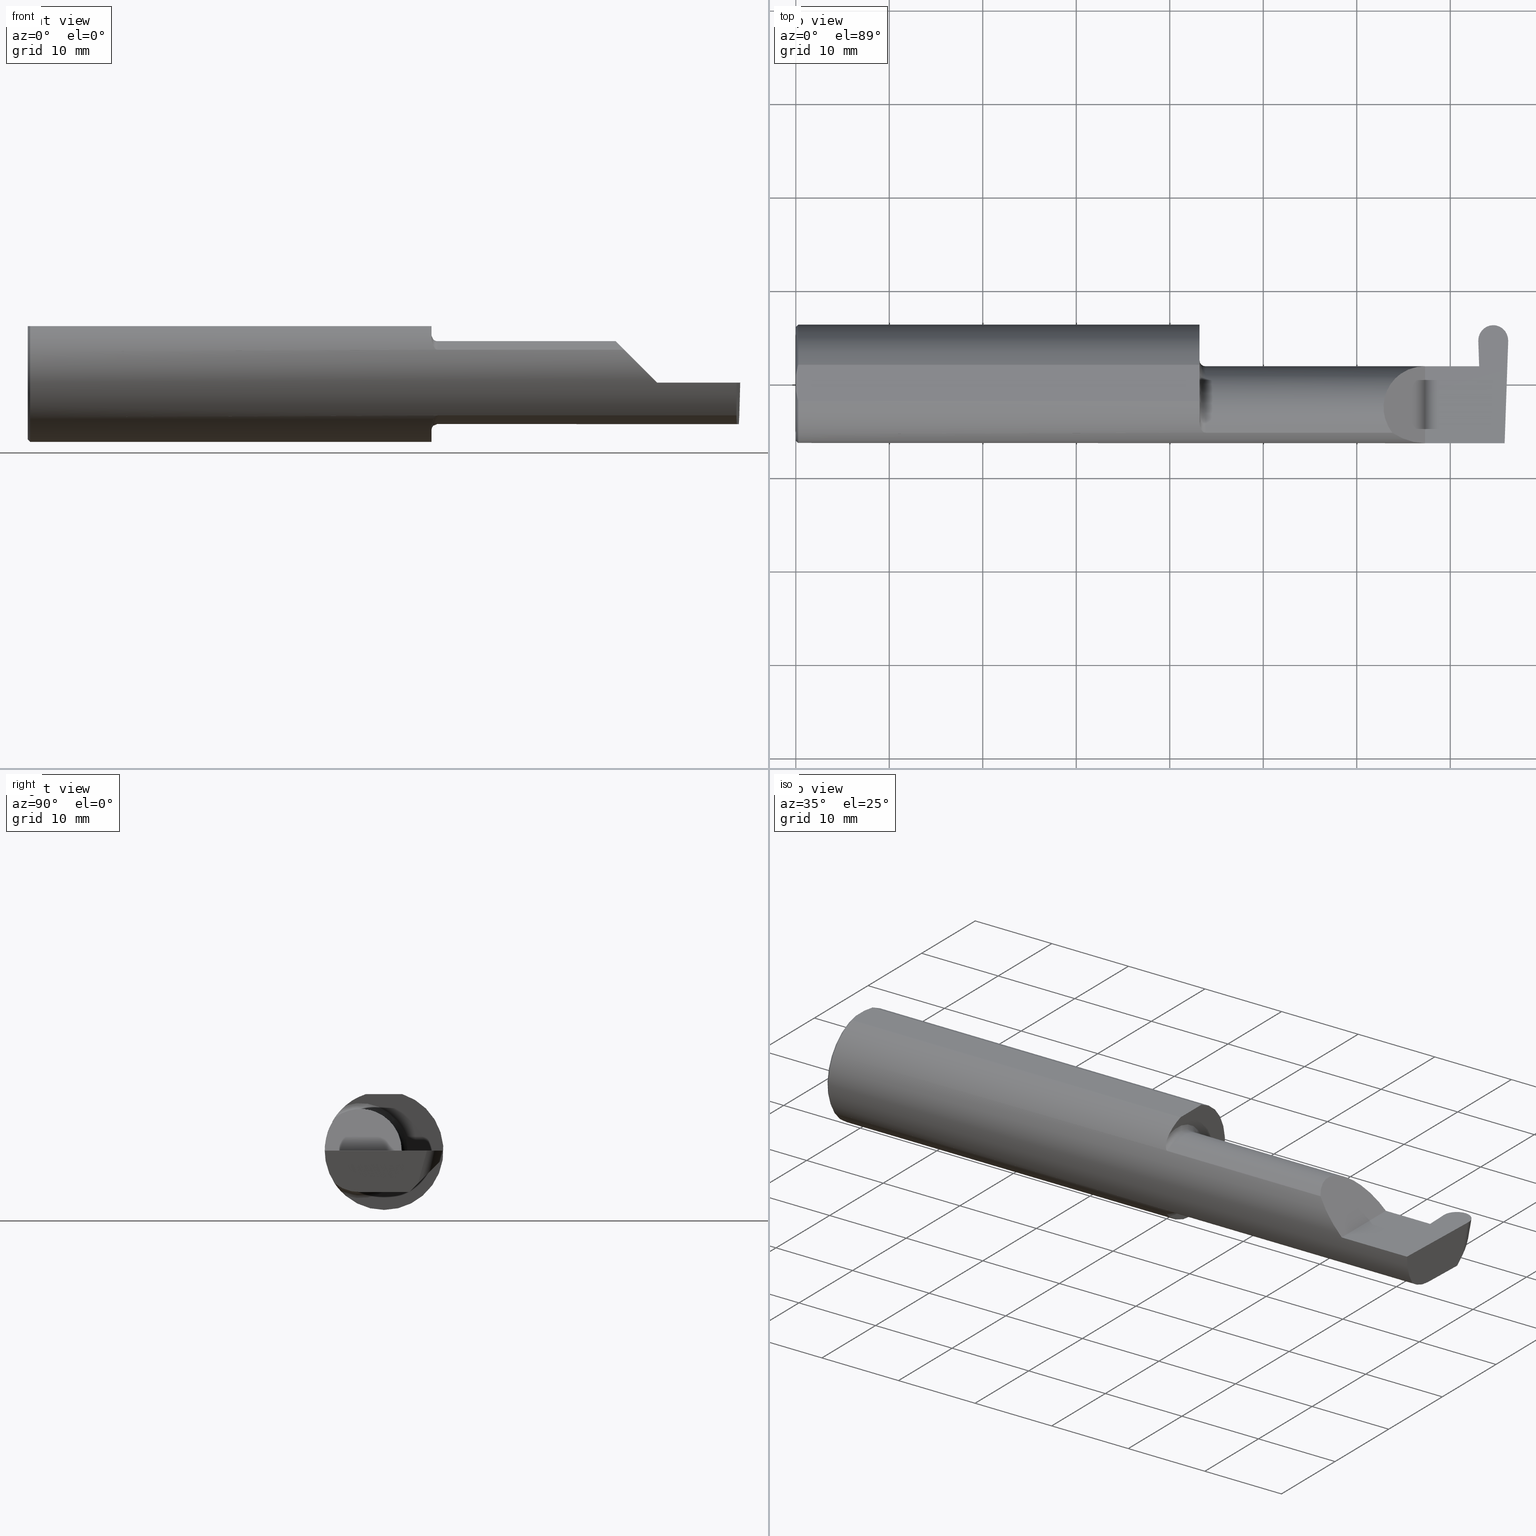
[diagram: canonical four-view strip — front | top / right | iso, engineering-drawing reading convention]
A machine part, canonical four-view strip (front | top / right | iso — engineering-drawing reading convention). The complete STEP part file that produces these views, byte-faithful:
ISO-10303-21;
HEADER;
FILE_DESCRIPTION (( 'STEP AP203' ),
    '1' );
FILE_NAME ('222479-GFR125-20.STEP',
    '2024-06-28T19:17:52',
    ( '' ),
    ( '' ),
    'SwSTEP 2.0',
    'SolidWorks 2024',
    '' );
FILE_SCHEMA (( 'CONFIG_CONTROL_DESIGN' ));
ENDSEC;

DATA;
#1 = CARTESIAN_POINT ( 'NONE',  ( 1.700000000000000178, 0.000000000000000000, 0.000000000000000000 ) ) ;
#2 = EDGE_CURVE ( 'NONE', #109, #354, #558, .T. ) ;
#3 = VERTEX_POINT ( 'NONE', #186 ) ;
#4 = DIRECTION ( 'NONE',  ( 1.000000000000000000, 0.000000000000000000, 0.000000000000000000 ) ) ;
#5 = LINE ( 'NONE', #333, #33 ) ;
#6 = ORIENTED_EDGE ( 'NONE', *, *, #317, .F. ) ;
#7 = CALENDAR_DATE ( 2024, 28, 6 ) ;
#8 = CARTESIAN_POINT ( 'NONE',  ( 2.866439859938323398, 0.07404339472834126079, -0.006107411922953031799 ) ) ;
#9 = ORIENTED_EDGE ( 'NONE', *, *, #198, .T. ) ;
#10 = APPROVAL_STATUS ( 'not_yet_approved' ) ;
#11 = CARTESIAN_POINT ( 'NONE',  ( 2.987033238708274752, -0.1008499999999999674, -0.1750000000000000722 ) ) ;
#12 = ORIENTED_EDGE ( 'NONE', *, *, #689, .F. ) ;
#13 = APPROVAL_PERSON_ORGANIZATION ( #83, #437, #518 ) ;
#14 = APPROVAL ( #10, 'UNSPECIFIED' ) ;
#15 = CC_DESIGN_PERSON_AND_ORGANIZATION_ASSIGNMENT ( #620, #24, ( #131 ) ) ;
#16 = LINE ( 'NONE', #559, #353 ) ;
#17 = APPROVAL ( #668, 'UNSPECIFIED' ) ;
#18 = DIRECTION ( 'NONE',  ( 0.000000000000000000, -1.000000000000000000, 0.000000000000000000 ) ) ;
#19 = AXIS2_PLACEMENT_3D ( 'NONE', #436, #652, #166 ) ;
#20 = AXIS2_PLACEMENT_3D ( 'NONE', #431, #107, #115 ) ;
#21 = CARTESIAN_POINT ( 'NONE',  ( 2.877583938758737858, 0.1431283489340402504, -0.1376959882141291225 ) ) ;
#22 = ORIENTED_EDGE ( 'NONE', *, *, #27, .F. ) ;
#23 = ORIENTED_EDGE ( 'NONE', *, *, #97, .T. ) ;
#24 = PERSON_AND_ORGANIZATION_ROLE ( 'creator' ) ;
#25 = PLANE ( 'NONE',  #212 ) ;
#26 = FACE_OUTER_BOUND ( 'NONE', #136, .T. ) ;
#27 = EDGE_CURVE ( 'NONE', #608, #442, #402, .T. ) ;
#28 = VERTEX_POINT ( 'NONE', #130 ) ;
#29 = LOCAL_TIME ( 12, 17, 51.00000000000000000, #287 ) ;
#30 = CARTESIAN_POINT ( 'NONE',  ( 0.001983148254845701515, -0.04629825796642599717, 0.2378499999999998671 ) ) ;
#31 =( BOUNDED_CURVE ( )  B_SPLINE_CURVE ( 3, ( #663, #452, #126, #610 ),
 .UNSPECIFIED., .F., .F. ) 
 B_SPLINE_CURVE_WITH_KNOTS ( ( 4, 4 ),
 ( 4.712388980384687898, 4.724678304898035641 ),
 .UNSPECIFIED. ) 
 CURVE ( )  GEOMETRIC_REPRESENTATION_ITEM ( )  RATIONAL_B_SPLINE_CURVE ( ( 1.000000000000000000, 0.9999874144148499511, 0.9999874144148499511, 1.000000000000000000 ) ) 
 REPRESENTATION_ITEM ( '' )  );
#32 = ORIENTED_EDGE ( 'NONE', *, *, #119, .T. ) ;
#33 = VECTOR ( 'NONE', #390, 39.37007874015748143 ) ;
#34 = PRODUCT_DEFINITION_SHAPE ( 'NONE', 'NONE',  #146 ) ;
#35 = PRODUCT_RELATED_PRODUCT_CATEGORY ( 'detail', '', ( #46 ) ) ;
#36 = CARTESIAN_POINT ( 'NONE',  ( 0.009999999999999856226, 0.07650098038587520299, 0.2378499999999998671 ) ) ;
#37 = CARTESIAN_POINT ( 'NONE',  ( 1.700000000000000178, -0.1008500000000000785, 0.000000000000000000 ) ) ;
#38 = EDGE_CURVE ( 'NONE', #240, #300, #349, .T. ) ;
#39 = LINE ( 'NONE', #639, #667 ) ;
#40 = CARTESIAN_POINT ( 'NONE',  ( 1.700000000000000178, -0.1665641037263009827, 0.1863429692936362514 ) ) ;
#41 = CARTESIAN_POINT ( 'NONE',  ( 2.880773714454434753, -0.001152430219572253686, -0.1750000000000000722 ) ) ;
#42 = CARTESIAN_POINT ( 'NONE',  ( 0.000000000000000000, 0.07650098038587520299, 0.2378499999999998671 ) ) ;
#43 = ORIENTED_EDGE ( 'NONE', *, *, #355, .F. ) ;
#44 = VECTOR ( 'NONE', #144, 39.37007874015748143 ) ;
#45 = CARTESIAN_POINT ( 'NONE',  ( 2.877587758332053269, 0.07414999999999977165, 0.000000000000000000 ) ) ;
#46 = PRODUCT ( '222479-GFR125-20', '222479-GFR125-20', '', ( #238 ) ) ;
#47 = CARTESIAN_POINT ( 'NONE',  ( 1.700000000000000178, -0.1616050818046603776, 0.1905487340154980724 ) ) ;
#48 = ORIENTED_EDGE ( 'NONE', *, *, #213, .T. ) ;
#49 = DIRECTION ( 'NONE',  ( 0.000000000000000000, 0.9659258262890680902, -0.2588190451025209615 ) ) ;
#50 = LINE ( 'NONE', #42, #268 ) ;
#51 = LINE ( 'NONE', #378, #547 ) ;
#52 = CARTESIAN_POINT ( 'NONE',  ( 1.717611663768900954, -0.2061921161193829843, -0.1411075319999378908 ) ) ;
#53 = SECURITY_CLASSIFICATION ( '', '', #337 ) ;
#54 = EDGE_LOOP ( 'NONE', ( #539, #237, #32, #247, #508, #60 ) ) ;
#55 = ADVANCED_FACE ( 'NONE', ( #26 ), #477, .F. ) ;
#56 = CARTESIAN_POINT ( 'NONE',  ( -0.002039370078740339320, 0.1058243371481696476, -0.1750000000000001277 ) ) ;
#57 = AXIS2_PLACEMENT_3D ( 'NONE', #1, #323, #503 ) ;
#58 = AXIS2_PLACEMENT_3D ( 'NONE', #706, #4, #702 ) ;
#59 = DIRECTION ( 'NONE',  ( 1.000000000000000000, 0.000000000000000000, -0.000000000000000000 ) ) ;
#60 = ORIENTED_EDGE ( 'NONE', *, *, #457, .F. ) ;
#61 = ADVANCED_FACE ( 'NONE', ( #373 ), #263, .T. ) ;
#62 = DIRECTION ( 'NONE',  ( 1.000000000000000000, 0.000000000000000000, 0.000000000000000000 ) ) ;
#63 = DIRECTION ( 'NONE',  ( 0.01806679408117574034, 0.000000000000000000, -0.9998367821557817559 ) ) ;
#64 = VERTEX_POINT ( 'NONE', #308 ) ;
#65 = DIRECTION ( 'NONE',  ( -0.02590004391968258809, -0.2587322210431824976, -0.9656017944882975268 ) ) ;
#66 = CARTESIAN_POINT ( 'NONE',  ( 2.650000000000000355, -0.2498499999999999610, 4.286263797015729199E-17 ) ) ;
#67 = ORIENTED_EDGE ( 'NONE', *, *, #457, .T. ) ;
#68 = CC_DESIGN_APPROVAL ( #17, ( #53 ) ) ;
#69 = COORDINATED_UNIVERSAL_TIME_OFFSET ( 8, 0, .BEHIND. ) ;
#70 = CARTESIAN_POINT ( 'NONE',  ( 2.996204691241262985, 0.1431283489340401394, -0.1376959882141292058 ) ) ;
#71 = ORIENTED_EDGE ( 'NONE', *, *, #255, .F. ) ;
#72 = DIRECTION ( 'NONE',  ( 0.000000000000000000, 0.000000000000000000, 1.000000000000000000 ) ) ;
#73 = CARTESIAN_POINT ( 'NONE',  ( 2.872525856337140748, 0.2191039076196377999, 1.588360126375408623E-17 ) ) ;
#74 = ORIENTED_EDGE ( 'NONE', *, *, #195, .T. ) ;
#75 = LINE ( 'NONE', #249, #44 ) ;
#76 = VERTEX_POINT ( 'NONE', #632 ) ;
#77 = DATE_AND_TIME ( #564, #29 ) ;
#78 =( BOUNDED_CURVE ( )  B_SPLINE_CURVE ( 3, ( #456, #669, #695, #153 ),
 .UNSPECIFIED., .F., .T. ) 
 B_SPLINE_CURVE_WITH_KNOTS ( ( 4, 4 ),
 ( 4.712388980384689674, 5.298966915116347209 ),
 .UNSPECIFIED. ) 
 CURVE ( )  GEOMETRIC_REPRESENTATION_ITEM ( )  RATIONAL_B_SPLINE_CURVE ( ( 1.000000000000000000, 0.9715321379117538569, 0.9715321379117538569, 1.000000000000000000 ) ) 
 REPRESENTATION_ITEM ( '' )  );
#79 = FACE_OUTER_BOUND ( 'NONE', #626, .T. ) ;
#80 = DIRECTION ( 'NONE',  ( 1.000000000000000000, 0.000000000000000000, 0.000000000000000000 ) ) ;
#81 = AXIS2_PLACEMENT_3D ( 'NONE', #37, #538, #94 ) ;
#82 = VECTOR ( 'NONE', #104, 39.37007874015748143 ) ;
#83 = PERSON_AND_ORGANIZATION ( #313, #586 ) ;
#84 = EDGE_CURVE ( 'NONE', #666, #117, #96, .T. ) ;
#85 = LINE ( 'NONE', #188, #258 ) ;
#86 = DIRECTION ( 'NONE',  ( 0.7071067811865486830, 0.000000000000000000, -0.7071067811865462405 ) ) ;
#87 = DIRECTION ( 'NONE',  ( 0.000000000000000000, -1.000000000000000000, 0.000000000000000000 ) ) ;
#88 = ORIENTED_EDGE ( 'NONE', *, *, #198, .F. ) ;
#89 = VERTEX_POINT ( 'NONE', #91 ) ;
#90 = CARTESIAN_POINT ( 'NONE',  ( 2.983929579294953616, -0.2080850024789288877, -0.1382955322609668858 ) ) ;
#91 = CARTESIAN_POINT ( 'NONE',  ( 1.700000000000000178, 0.07650098038587520299, 0.2378499999999998671 ) ) ;
#92 = EDGE_CURVE ( 'NONE', #127, #565, #147, .T. ) ;
#93 = CARTESIAN_POINT ( 'NONE',  ( 2.866546465209982131, 0.07414999999999977165, 0.000000000000000000 ) ) ;
#94 = DIRECTION ( 'NONE',  ( 0.000000000000000000, -1.000000000000000000, 0.000000000000000000 ) ) ;
#95 = DIRECTION ( 'NONE',  ( -0.03489949670249371111, 0.9993908270190959842, 0.000000000000000000 ) ) ;
#96 = LINE ( 'NONE', #642, #182 ) ;
#97 = EDGE_CURVE ( 'NONE', #117, #650, #492, .T. ) ;
#98 = CARTESIAN_POINT ( 'NONE',  ( 2.880805159919762826, -0.1008500000000000368, -0.1750000000000000444 ) ) ;
#99 = DIRECTION ( 'NONE',  ( -0.0003154085283454420899, 0.9999999502587288980, -1.223178646569383192E-16 ) ) ;
#100 = ADVANCED_FACE ( 'NONE', ( #311 ), #578, .T. ) ;
#101 = CARTESIAN_POINT ( 'NONE',  ( 1.701849548162865045, -0.1805300287242672386, 0.1728462070311780896 ) ) ;
#102 = ORIENTED_EDGE ( 'NONE', *, *, #510, .F. ) ;
#103 =( BOUNDED_CURVE ( )  B_SPLINE_CURVE ( 3, ( #98, #41, #361, #422 ),
 .UNSPECIFIED., .F., .F. ) 
 B_SPLINE_CURVE_WITH_KNOTS ( ( 4, 4 ),
 ( 3.159045946109733105, 4.694935687864651541 ),
 .UNSPECIFIED. ) 
 CURVE ( )  GEOMETRIC_REPRESENTATION_ITEM ( )  RATIONAL_B_SPLINE_CURVE ( ( 1.000000000000000000, 0.8128932002257887035, 0.8128932002257887035, 1.000000000000000000 ) ) 
 REPRESENTATION_ITEM ( '' )  );
#104 = DIRECTION ( 'NONE',  ( -5.818441080112232858E-17, 1.000000000000000000, 0.000000000000000000 ) ) ;
#105 = DIRECTION ( 'NONE',  ( 1.000000000000000000, 5.818441080112232858E-17, 0.000000000000000000 ) ) ;
#106 = ORIENTED_EDGE ( 'NONE', *, *, #596, .F. ) ;
#107 = DIRECTION ( 'NONE',  ( 0.02590004391968223074, -0.2587322210431824976, -0.9656017944882975268 ) ) ;
#108 = DIRECTION ( 'NONE',  ( 0.000000000000000000, -0.7071067811865435759, -0.7071067811865514585 ) ) ;
#109 = VERTEX_POINT ( 'NONE', #47 ) ;
#110 = ADVANCED_FACE ( 'NONE', ( #480 ), #700, .F. ) ;
#111 = CARTESIAN_POINT ( 'NONE',  ( 2.935382123675520205, 0.1665992816037146218, -0.05720606541626471753 ) ) ;
#112 = AXIS2_PLACEMENT_3D ( 'NONE', #328, #277, #262 ) ;
#113 = CARTESIAN_POINT ( 'NONE',  ( 0.009999999999999856226, -0.07650098038587520299, 0.2378499999999998671 ) ) ;
#114 = ORIENTED_EDGE ( 'NONE', *, *, #213, .F. ) ;
#115 = DIRECTION ( 'NONE',  ( 0.000000000000000000, 0.9659258262890680902, -0.2588190451025209615 ) ) ;
#116 = FACE_OUTER_BOUND ( 'NONE', #438, .T. ) ;
#117 = VERTEX_POINT ( 'NONE', #630 ) ;
#118 = COORDINATED_UNIVERSAL_TIME_OFFSET ( 8, 0, .BEHIND. ) ;
#119 = EDGE_CURVE ( 'NONE', #89, #565, #50, .T. ) ;
#120 = DIRECTION ( 'NONE',  ( -0.03489949670249371111, 0.9993908270190959842, -1.222058880457094394E-16 ) ) ;
#121 = ORIENTED_EDGE ( 'NONE', *, *, #173, .F. ) ;
#122 = APPROVAL_ROLE ( '' ) ;
#123 = DIRECTION ( 'NONE',  ( -1.000000000000000000, -5.818441080112232858E-17, -0.000000000000000000 ) ) ;
#124 = ORIENTED_EDGE ( 'NONE', *, *, #675, .T. ) ;
#125 = CALENDAR_DATE ( 2024, 28, 6 ) ;
#126 = CARTESIAN_POINT ( 'NONE',  ( 2.936894315000000866, 0.2373994449183843558, -0.03638343994947537685 ) ) ;
#127 = VERTEX_POINT ( 'NONE', #256 ) ;
#128 = EDGE_CURVE ( 'NONE', #109, #666, #444, .T. ) ;
#129 = CARTESIAN_POINT ( 'NONE',  ( 2.874814236522603483, 0.1959989092472254335, -0.08482542790094331486 ) ) ;
#130 = CARTESIAN_POINT ( 'NONE',  ( 2.999898068948996244, 0.1800238777770215015, 0.000000000000000000 ) ) ;
#131 = PRODUCT_DEFINITION_FORMATION_WITH_SPECIFIED_SOURCE ( 'ANY', '', #46, .NOT_KNOWN. ) ;
#132 = PERSON_AND_ORGANIZATION ( #313, #586 ) ;
#133 = CARTESIAN_POINT ( 'NONE',  ( 1.725000000000000089, -0.1008500000000001062, 0.000000000000000000 ) ) ;
#134 = ORIENTED_EDGE ( 'NONE', *, *, #579, .F. ) ;
#135 = CIRCLE ( 'NONE', #57, 0.2498499999999999888 ) ;
#136 = EDGE_LOOP ( 'NONE', ( #164, #189, #611 ) ) ;
#137 = CC_DESIGN_DATE_AND_TIME_ASSIGNMENT ( #77, #408, ( #53 ) ) ;
#138 = DIRECTION ( 'NONE',  ( -0.9992386149554828290, 0.03489418134010775774, 0.01745240643728358798 ) ) ;
#139 = ORIENTED_EDGE ( 'NONE', *, *, #371, .T. ) ;
#140 = ORIENTED_EDGE ( 'NONE', *, *, #195, .F. ) ;
#141 = LINE ( 'NONE', #529, #681 ) ;
#142 = CARTESIAN_POINT ( 'NONE',  ( 2.511704467739032332, -0.2080850024789289432, 0.1382955322609668858 ) ) ;
#143 = AXIS2_PLACEMENT_3D ( 'NONE', #543, #495, #699 ) ;
#144 = DIRECTION ( 'NONE',  ( -0.000000000000000000, 1.000000000000000000, -0.000000000000000000 ) ) ;
#145 = CARTESIAN_POINT ( 'NONE',  ( 0.002005502345409059580, 0.04647171987093979412, 0.2378499999999998671 ) ) ;
#146 = PRODUCT_DEFINITION ( 'UNKNOWN', '', #131, #320 ) ;
#147 = B_SPLINE_CURVE_WITH_KNOTS ( 'NONE', 3,
 ( #421, #145, #474, #470 ),
 .UNSPECIFIED., .F., .F.,
 ( 4, 4 ),
 ( 0.01593449416844770414, 0.01712021724825603733 ),
 .UNSPECIFIED. ) ;
#148 = VECTOR ( 'NONE', #218, 39.37007874015748143 ) ;
#149 = VECTOR ( 'NONE', #475, 39.37007874015748143 ) ;
#150 = APPLICATION_CONTEXT ( 'configuration controlled 3d designs of mechanical parts and assemblies' ) ;
#151 = DIRECTION ( 'NONE',  ( 1.000000000000000000, 5.818441080112232858E-17, 0.000000000000000000 ) ) ;
#152 = EDGE_CURVE ( 'NONE', #28, #64, #399, .T. ) ;
#153 = CARTESIAN_POINT ( 'NONE',  ( 2.511704467739032332, -0.2080850024789289432, 0.1382955322609668858 ) ) ;
#154 = DIRECTION ( 'NONE',  ( -1.000000000000000000, -0.000000000000000000, -0.000000000000000000 ) ) ;
#155 = ORIENTED_EDGE ( 'NONE', *, *, #448, .T. ) ;
#156 = LINE ( 'NONE', #641, #293 ) ;
#157 = DIRECTION ( 'NONE',  ( 0.000000000000000000, -1.000000000000000000, 1.223176342469858371E-16 ) ) ;
#158 = ORIENTED_EDGE ( 'NONE', *, *, #596, .T. ) ;
#159 = AXIS2_PLACEMENT_3D ( 'NONE', #464, #449, #401 ) ;
#160 = CARTESIAN_POINT ( 'NONE',  ( 1.700000000000000178, -0.07650098038587523075, 0.2378499999999998671 ) ) ;
#161 = CYLINDRICAL_SURFACE ( 'NONE', #236, 0.06300000000000001432 ) ;
#162 = CARTESIAN_POINT ( 'NONE',  ( 1.699999999999999734, -0.1716188362992553673, -0.1820560320165480472 ) ) ;
#163 = EDGE_CURVE ( 'NONE', #3, #257, #446, .T. ) ;
#164 = ORIENTED_EDGE ( 'NONE', *, *, #505, .T. ) ;
#165 = CARTESIAN_POINT ( 'NONE',  ( 0.000000000000000000, 0.000000000000000000, 0.000000000000000000 ) ) ;
#166 = DIRECTION ( 'NONE',  ( 0.000000000000000000, 0.000000000000000000, -1.000000000000000000 ) ) ;
#167 = EDGE_LOOP ( 'NONE', ( #211, #391, #340, #546 ) ) ;
#168 = DIRECTION ( 'NONE',  ( -0.7071067811865511255, 0.000000000000000000, 0.7071067811865439090 ) ) ;
#169 = VECTOR ( 'NONE', #493, 39.37007874015748854 ) ;
#170 = CIRCLE ( 'NONE', #58, 0.2498499999999999888 ) ;
#171 = CARTESIAN_POINT ( 'NONE',  ( 1.714302603425052807, -0.2041009206016212441, -0.1441313430770040649 ) ) ;
#172 = ORIENTED_EDGE ( 'NONE', *, *, #602, .T. ) ;
#173 = EDGE_CURVE ( 'NONE', #605, #494, #581, .T. ) ;
#174 = DIRECTION ( 'NONE',  ( 1.000000000000000000, 0.000000000000000000, 0.000000000000000000 ) ) ;
#175 = DIRECTION ( 'NONE',  ( 0.000000000000000000, -0.7071067811865514585, 0.7071067811865435759 ) ) ;
#176 = ORIENTED_EDGE ( 'NONE', *, *, #552, .F. ) ;
#177 = APPLICATION_PROTOCOL_DEFINITION ( 'international standard', 'config_control_design', 1994, #685 ) ;
#178 = DIRECTION ( 'NONE',  ( 5.818441080112232858E-17, -1.000000000000000000, 0.000000000000000000 ) ) ;
#179 = ORIENTED_EDGE ( 'NONE', *, *, #556, .T. ) ;
#180 =( GEOMETRIC_REPRESENTATION_CONTEXT ( 3 ) GLOBAL_UNCERTAINTY_ASSIGNED_CONTEXT ( ( #545 ) ) GLOBAL_UNIT_ASSIGNED_CONTEXT ( ( #590, #514, #561 ) ) REPRESENTATION_CONTEXT ( 'NONE', 'WORKASPACE' ) );
#181 = CARTESIAN_POINT ( 'NONE',  ( 2.880750926882964524, 0.07109536363756167876, -0.1750000000000000722 ) ) ;
#182 = VECTOR ( 'NONE', #530, 39.37007874015748143 ) ;
#183 = EDGE_CURVE ( 'NONE', #257, #28, #649, .T. ) ;
#184 = ORIENTED_EDGE ( 'NONE', *, *, #84, .F. ) ;
#185 = FACE_OUTER_BOUND ( 'NONE', #522, .T. ) ;
#186 = CARTESIAN_POINT ( 'NONE',  ( 2.936894315000000866, 0.2348176093011050958, -0.04600672784706324320 ) ) ;
#187 = APPROVAL_STATUS ( 'not_yet_approved' ) ;
#188 = CARTESIAN_POINT ( 'NONE',  ( 2.934463560741512822, 0.2668412317563639835, 0.07348867737836418945 ) ) ;
#189 = ORIENTED_EDGE ( 'NONE', *, *, #351, .T. ) ;
#190 = VERTEX_POINT ( 'NONE', #66 ) ;
#191 = APPLICATION_PROTOCOL_DEFINITION ( 'international standard', 'config_control_design', 1994, #150 ) ;
#192 = DIRECTION ( 'NONE',  ( -1.000000000000000000, -5.818441080112232858E-17, -0.000000000000000000 ) ) ;
#193 = ORIENTED_EDGE ( 'NONE', *, *, #675, .F. ) ;
#194 = AXIS2_PLACEMENT_3D ( 'NONE', #204, #528, #157 ) ;
#195 = EDGE_CURVE ( 'NONE', #650, #468, #379, .T. ) ;
#196 = CARTESIAN_POINT ( 'NONE',  ( 0.000000000000000000, -0.03090954545120560767, 0.2378499999999998671 ) ) ;
#197 = ORIENTED_EDGE ( 'NONE', *, *, #406, .T. ) ;
#198 = EDGE_CURVE ( 'NONE', #318, #653, #5, .T. ) ;
#199 = DIRECTION ( 'NONE',  ( 0.000000000000000000, -0.2588190451025209615, -0.9659258262890682012 ) ) ;
#200 = DIRECTION ( 'NONE',  ( 0.9992386149554828290, 0.03489418134010641159, 0.01745240643728358798 ) ) ;
#201 = CARTESIAN_POINT ( 'NONE',  ( 1.702968662030529323, -0.1849684355203377317, 0.1680843977756269203 ) ) ;
#202 = CIRCLE ( 'NONE', #577, 0.2498499999999999888 ) ;
#203 = CARTESIAN_POINT ( 'NONE',  ( 0.009999999999999856226, -0.07650098038587520299, 0.2378499999999998671 ) ) ;
#204 = CARTESIAN_POINT ( 'NONE',  ( 3.402190948718818664, -0.1008499999999999674, -0.1750000000000000722 ) ) ;
#205 = ADVANCED_FACE ( 'NONE', ( #661 ), #595, .F. ) ;
#206 = CARTESIAN_POINT ( 'NONE',  ( 2.984886542352623628, -0.2498499999999999888, 0.000000000000000000 ) ) ;
#207 = CARTESIAN_POINT ( 'NONE',  ( 2.974284482021860576, 0.2341676052385947282, -0.04665673190957361077 ) ) ;
#208 = ORIENTED_EDGE ( 'NONE', *, *, #592, .T. ) ;
#209 = CARTESIAN_POINT ( 'NONE',  ( 2.650000000000000355, -0.2500000000000000555, 4.286263797015729199E-17 ) ) ;
#210 = CARTESIAN_POINT ( 'NONE',  ( 2.996204691241262985, 0.1431283489340401394, -0.1376959882141292058 ) ) ;
#211 = ORIENTED_EDGE ( 'NONE', *, *, #128, .T. ) ;
#212 = AXIS2_PLACEMENT_3D ( 'NONE', #614, #569, #291 ) ;
#213 = EDGE_CURVE ( 'NONE', #354, #89, #135, .T. ) ;
#214 = PLANE ( 'NONE',  #112 ) ;
#215 = CARTESIAN_POINT ( 'NONE',  ( 1.706147634408388347, -0.1932733126899459919, -0.1584637047788199082 ) ) ;
#216 = VERTEX_POINT ( 'NONE', #591 ) ;
#217 = CYLINDRICAL_SURFACE ( 'NONE', #20, 0.06300000000000001432 ) ;
#218 = DIRECTION ( 'NONE',  ( -1.000000000000000000, -0.000000000000000000, -0.000000000000000000 ) ) ;
#219 = ORIENTED_EDGE ( 'NONE', *, *, #460, .T. ) ;
#220 = DIRECTION ( 'NONE',  ( 0.000000000000000000, 0.000000000000000000, -1.000000000000000000 ) ) ;
#221 = CARTESIAN_POINT ( 'NONE',  ( 1.718863362722771182, -0.2068301641248769807, -0.1401678546132362202 ) ) ;
#222 = ORIENTED_EDGE ( 'NONE', *, *, #582, .F. ) ;
#223 = ADVANCED_FACE ( 'NONE', ( #607 ), #708, .T. ) ;
#224 = CARTESIAN_POINT ( 'NONE',  ( 2.987033238708274752, -0.1008499999999999674, -0.1750000000000000722 ) ) ;
#225 = CARTESIAN_POINT ( 'NONE',  ( 2.887383178847820808, -0.1188274834642220473, -0.1750000000000000722 ) ) ;
#226 = ORIENTED_EDGE ( 'NONE', *, *, #689, .T. ) ;
#227 = APPROVAL_DATE_TIME ( #290, #17 ) ;
#228 = CARTESIAN_POINT ( 'NONE',  ( 2.650000000000000355, -0.2500000000000000555, 4.286263797015729199E-17 ) ) ;
#229 = EDGE_LOOP ( 'NONE', ( #219, #541, #124 ) ) ;
#230 = APPROVAL_ROLE ( '' ) ;
#231 = EDGE_LOOP ( 'NONE', ( #517, #536, #245, #684, #242 ) ) ;
#232 = APPROVAL_PERSON_ORGANIZATION ( #506, #17, #122 ) ;
#233 = PERSON_AND_ORGANIZATION ( #313, #586 ) ;
#234 = EDGE_CURVE ( 'NONE', #520, #504, #704, .T. ) ;
#235 = CARTESIAN_POINT ( 'NONE',  ( 1.725000000000000089, -0.1008500000000000785, 0.000000000000000000 ) ) ;
#236 = AXIS2_PLACEMENT_3D ( 'NONE', #111, #65, #49 ) ;
#237 = ORIENTED_EDGE ( 'NONE', *, *, #648, .T. ) ;
#238 = MECHANICAL_CONTEXT ( 'NONE', #685, 'mechanical' ) ;
#239 = CARTESIAN_POINT ( 'NONE',  ( 2.899504147978140267, 0.2341676052385956164, -0.04665673190957269484 ) ) ;
#240 = VERTEX_POINT ( 'NONE', #113 ) ;
#241 = CARTESIAN_POINT ( 'NONE',  ( 2.985664738015655129, -0.1400387324517229082, -0.1750000000000001277 ) ) ;
#242 = ORIENTED_EDGE ( 'NONE', *, *, #152, .F. ) ;
#243 = EDGE_CURVE ( 'NONE', #318, #424, #329, .T. ) ;
#244 = AXIS2_PLACEMENT_3D ( 'NONE', #209, #498, #168 ) ;
#245 = ORIENTED_EDGE ( 'NONE', *, *, #415, .F. ) ;
#246 = CARTESIAN_POINT ( 'NONE',  ( 2.996893271351730004, 0.1562725836412660607, -0.1245517535069031456 ) ) ;
#247 = ORIENTED_EDGE ( 'NONE', *, *, #92, .F. ) ;
#248 =( BOUNDED_CURVE ( )  B_SPLINE_CURVE ( 3, ( #90, #635, #479, #206 ),
 .UNSPECIFIED., .F., .F. ) 
 B_SPLINE_CURVE_WITH_KNOTS ( ( 4, 4 ),
 ( 6.160376845738954721, 6.746954780470613144 ),
 .UNSPECIFIED. ) 
 CURVE ( )  GEOMETRIC_REPRESENTATION_ITEM ( )  RATIONAL_B_SPLINE_CURVE ( ( 1.000000000000000000, 0.9715321379117538569, 0.9715321379117538569, 1.000000000000000000 ) ) 
 REPRESENTATION_ITEM ( '' )  );
#249 = CARTESIAN_POINT ( 'NONE',  ( 0.000000000000000000, 0.2498499999999998500, 0.2378499999999998671 ) ) ;
#250 = CARTESIAN_POINT ( 'NONE',  ( 2.650000000000000355, 0.07414999999999997982, 1.592040838891556877E-16 ) ) ;
#251 = EDGE_CURVE ( 'NONE', #380, #298, #319, .T. ) ;
#252 = CARTESIAN_POINT ( 'NONE',  ( 4.499279347985562423E-32, -0.2498499999999999610, 3.673940397442054938E-16 ) ) ;
#253 = CARTESIAN_POINT ( 'NONE',  ( 1.700367168219774294, -0.1713400252854603290, 0.1819601557798506408 ) ) ;
#254 = CARTESIAN_POINT ( 'NONE',  ( 2.866546465209982131, 0.07414999999999977165, 0.000000000000000000 ) ) ;
#255 = EDGE_CURVE ( 'NONE', #127, #608, #325, .T. ) ;
#256 = CARTESIAN_POINT ( 'NONE',  ( 0.000000000000000000, 0.03090954545120574992, 0.2378499999999998671 ) ) ;
#257 = VERTEX_POINT ( 'NONE', #210 ) ;
#258 = VECTOR ( 'NONE', #404, 39.37007874015748854 ) ;
#259 = DIRECTION ( 'NONE',  ( 0.000000000000000000, -0.01745240643728358451, -0.9998476951563912696 ) ) ;
#260 = CARTESIAN_POINT ( 'NONE',  ( 2.936894315000000866, 0.2348176093011050958, -0.04600672784706324320 ) ) ;
#261 = VERTEX_POINT ( 'NONE', #428 ) ;
#262 = DIRECTION ( 'NONE',  ( 0.000000000000000000, 0.000000000000000000, -1.000000000000000000 ) ) ;
#263 = CYLINDRICAL_SURFACE ( 'NONE', #81, 0.1750000000000000444 ) ;
#264 = CARTESIAN_POINT ( 'NONE',  ( 2.868840969551623932, 0.3100219863620841676, 0.02919764921391665435 ) ) ;
#265 = AXIS2_PLACEMENT_3D ( 'NONE', #165, #174, #220 ) ;
#266 = CARTESIAN_POINT ( 'NONE',  ( 2.881751263448093514, -2.813289441922686596, -0.1800126308514063134 ) ) ;
#267 = VERTEX_POINT ( 'NONE', #445 ) ;
#268 = VECTOR ( 'NONE', #416, 39.37007874015748143 ) ;
#269 = AXIS2_PLACEMENT_3D ( 'NONE', #688, #200, #95 ) ;
#270 = LINE ( 'NONE', #486, #692 ) ;
#271 = CARTESIAN_POINT ( 'NONE',  ( 2.999910294815772982, 0.1801460098349874084, 0.0004558030455618249425 ) ) ;
#272 = ORIENTED_EDGE ( 'NONE', *, *, #38, .F. ) ;
#273 = DIRECTION ( 'NONE',  ( -0.03701744261649780876, 0.7066221440565400025, 0.7066221440565478851 ) ) ;
#274 = ADVANCED_FACE ( 'NONE', ( #384 ), #549, .F. ) ;
#275 = CARTESIAN_POINT ( 'NONE',  ( 2.879538164404315648, 0.1058243371481696893, -0.1750000000000001277 ) ) ;
#276 = ORIENTED_EDGE ( 'NONE', *, *, #490, .F. ) ;
#277 = DIRECTION ( 'NONE',  ( 1.000000000000000000, 0.000000000000000000, 0.000000000000000000 ) ) ;
#278 = CARTESIAN_POINT ( 'NONE',  ( -0.002039370078740339320, 0.2348243371481683328, -0.04599999999999999922 ) ) ;
#279 = EDGE_LOOP ( 'NONE', ( #88, #671, #458, #405 ) ) ;
#280 = DATE_AND_TIME ( #672, #370 ) ;
#281 = VECTOR ( 'NONE', #414, 39.37007874015748143 ) ;
#282 = CARTESIAN_POINT ( 'NONE',  ( 3.402190948718818664, -0.1008499999999999674, -0.1750000000000000722 ) ) ;
#283 = ORIENTED_EDGE ( 'NONE', *, *, #426, .F. ) ;
#284 = DIRECTION ( 'NONE',  ( 1.000000000000000000, 0.000000000000000000, 0.000000000000000000 ) ) ;
#285 = CARTESIAN_POINT ( 'NONE',  ( 0.009999999999999856226, 0.000000000000000000, -0.2498499999999999888 ) ) ;
#286 = EDGE_LOOP ( 'NONE', ( #694, #682, #374 ) ) ;
#287 = COORDINATED_UNIVERSAL_TIME_OFFSET ( 8, 0, .BEHIND. ) ;
#288 = DIRECTION ( 'NONE',  ( -0.03489949670249505725, -0.9993908270190959842, 0.000000000000000000 ) ) ;
#289 = ORIENTED_EDGE ( 'NONE', *, *, #526, .T. ) ;
#290 = DATE_AND_TIME ( #7, #643 ) ;
#291 = DIRECTION ( 'NONE',  ( -5.818441080112232858E-17, 1.000000000000000000, 0.000000000000000000 ) ) ;
#292 = CLOSED_SHELL ( 'NONE', ( #659, #501, #100, #707, #326, #223, #628, #698, #365, #61, #345, #110, #55, #205, #572, #309, #274, #616, #638 ) ) ;
#293 = VECTOR ( 'NONE', #99, 39.37007874015748854 ) ;
#294 = CARTESIAN_POINT ( 'NONE',  ( 1.700000000000000178, -0.1008500000000000785, 0.000000000000000000 ) ) ;
#295 = PERSON_AND_ORGANIZATION_ROLE ( 'design_owner' ) ;
#296 = LINE ( 'NONE', #511, #315 ) ;
#297 = CARTESIAN_POINT ( 'NONE',  ( 0.000000000000000000, -0.07650098038587520299, 0.2378499999999998671 ) ) ;
#298 = VERTEX_POINT ( 'NONE', #275 ) ;
#299 = CARTESIAN_POINT ( 'NONE',  ( 1.725000000000000089, -0.2080850024789288877, -0.1382955322609669413 ) ) ;
#300 = VERTEX_POINT ( 'NONE', #160 ) ;
#301 = CC_DESIGN_APPROVAL ( #14, ( #146 ) ) ;
#302 = ORIENTED_EDGE ( 'NONE', *, *, #128, .F. ) ;
#303 = CARTESIAN_POINT ( 'NONE',  ( 1.700000000000000178, 0.000000000000000000, 0.000000000000000000 ) ) ;
#304 = CARTESIAN_POINT ( 'NONE',  ( -0.002039370078740339320, 0.2471499999999999808, 0.000000000000000000 ) ) ;
#305 = AXIS2_PLACEMENT_3D ( 'NONE', #235, #192, #87 ) ;
#306 = EDGE_CURVE ( 'NONE', #407, #354, #434, .T. ) ;
#307 = CARTESIAN_POINT ( 'NONE',  ( 0.005459900170181723050, -0.06167314502012866823, 0.2378499999999998671 ) ) ;
#308 = CARTESIAN_POINT ( 'NONE',  ( 2.937353904765460211, 0.2471499999999999808, 0.000000000000000000 ) ) ;
#309 = ADVANCED_FACE ( 'NONE', ( #116 ), #553, .F. ) ;
#310 = CARTESIAN_POINT ( 'NONE',  ( 2.866475395028876161, 0.07407892981889409312, -0.004071607948635357424 ) ) ;
#311 = FACE_OUTER_BOUND ( 'NONE', #497, .T. ) ;
#312 = FACE_OUTER_BOUND ( 'NONE', #279, .T. ) ;
#313 = PERSON ( 'UNSPECIFIED', 'UNSPECIFIED', 'UNSPECIFIED', ('UNSPECIFIED'), ('UNSPECIFIED'), ('UNSPECIFIED') ) ;
#314 = CARTESIAN_POINT ( 'NONE',  ( 2.999898068948996244, 0.1800238777770215015, 0.000000000000000000 ) ) ;
#315 = VECTOR ( 'NONE', #356, 39.37007874015748143 ) ;
#316 = CARTESIAN_POINT ( 'NONE',  ( 1.717647060162628136, -0.2062109266231181293, 0.1410799729252292800 ) ) ;
#317 = EDGE_CURVE ( 'NONE', #190, #650, #339, .T. ) ;
#318 = VERTEX_POINT ( 'NONE', #348 ) ;
#319 = LINE ( 'NONE', #225, #588 ) ;
#320 = DESIGN_CONTEXT ( 'detailed design', #150, 'design' ) ;
#321 = ORIENTED_EDGE ( 'NONE', *, *, #183, .T. ) ;
#322 = CARTESIAN_POINT ( 'NONE',  ( 2.877587758332053269, 0.07414999999999977165, 0.000000000000000000 ) ) ;
#323 = DIRECTION ( 'NONE',  ( 1.000000000000000000, 5.818441080112232858E-17, 0.000000000000000000 ) ) ;
#324 = ORIENTED_EDGE ( 'NONE', *, *, #542, .F. ) ;
#325 = CIRCLE ( 'NONE', #19, 0.2398500000000001742 ) ;
#326 = ADVANCED_FACE ( 'NONE', ( #185 ), #516, .F. ) ;
#327 = VECTOR ( 'NONE', #583, 39.37007874015748143 ) ;
#328 = CARTESIAN_POINT ( 'NONE',  ( 0.000000000000000000, 0.000000000000000000, 0.000000000000000000 ) ) ;
#329 = LINE ( 'NONE', #656, #645 ) ;
#330 = ORIENTED_EDGE ( 'NONE', *, *, #84, .T. ) ;
#331 = CARTESIAN_POINT ( 'NONE',  ( 1.725000000000000089, -0.2080850024789289432, 0.1382955322609669135 ) ) ;
#332 = B_SPLINE_CURVE_WITH_KNOTS ( 'NONE', 3,
 ( #358, #310, #532, #254 ),
 .UNSPECIFIED., .F., .F.,
 ( 4, 4 ),
 ( 0.000000000000000000, 1.000000000000000000 ),
 .UNSPECIFIED. ) ;
#333 = CARTESIAN_POINT ( 'NONE',  ( 2.877587758332053269, 0.07414999999999977165, 0.000000000000000000 ) ) ;
#334 = ORIENTED_EDGE ( 'NONE', *, *, #531, .F. ) ;
#335 = DIRECTION ( 'NONE',  ( -1.000000000000000000, -5.818441080112232858E-17, -0.000000000000000000 ) ) ;
#336 = ORIENTED_EDGE ( 'NONE', *, *, #381, .F. ) ;
#337 = SECURITY_CLASSIFICATION_LEVEL ( 'unclassified' ) ;
#338 = VECTOR ( 'NONE', #618, 39.37007874015748143 ) ;
#339 = LINE ( 'NONE', #228, #338 ) ;
#340 = ORIENTED_EDGE ( 'NONE', *, *, #306, .T. ) ;
#341 = EDGE_CURVE ( 'NONE', #504, #3, #566, .T. ) ;
#342 = PERSON_AND_ORGANIZATION ( #313, #586 ) ;
#343 = DIRECTION ( 'NONE',  ( -1.000000000000000000, -5.818441080112232858E-17, -0.000000000000000000 ) ) ;
#344 = VERTEX_POINT ( 'NONE', #352 ) ;
#345 = ADVANCED_FACE ( 'NONE', ( #79 ), #25, .T. ) ;
#346 = CC_DESIGN_PERSON_AND_ORGANIZATION_ASSIGNMENT ( #233, #463, ( #131 ) ) ;
#347 = PERSON_AND_ORGANIZATION ( #313, #586 ) ;
#348 = CARTESIAN_POINT ( 'NONE',  ( 2.877698151322465314, 0.07404339472834124691, -0.006107411922953761250 ) ) ;
#349 = LINE ( 'NONE', #297, #430 ) ;
#350 = CARTESIAN_POINT ( 'NONE',  ( 0.000000000000000000, 0.000000000000000000, 0.000000000000000000 ) ) ;
#351 = EDGE_CURVE ( 'NONE', #267, #216, #85, .T. ) ;
#352 = CARTESIAN_POINT ( 'NONE',  ( 2.994250465595685640, 0.1058243371481696615, -0.1750000000000001277 ) ) ;
#353 = VECTOR ( 'NONE', #343, 39.37007874015748143 ) ;
#354 = VERTEX_POINT ( 'NONE', #678 ) ;
#355 = EDGE_CURVE ( 'NONE', #666, #407, #623, .T. ) ;
#356 = DIRECTION ( 'NONE',  ( -0.01806954526206908801, 0.01744955702544859211, 0.9996844524616943506 ) ) ;
#357 = ORIENTED_EDGE ( 'NONE', *, *, #341, .F. ) ;
#358 = CARTESIAN_POINT ( 'NONE',  ( 2.866439859938323398, 0.07404339472834126079, -0.006107411922953031799 ) ) ;
#359 = CARTESIAN_POINT ( 'NONE',  ( 2.482823929317965028, 0.07414999999999999369, 0.1671760706820338838 ) ) ;
#360 = LOCAL_TIME ( 12, 17, 51.00000000000000000, #403 ) ;
#361 = CARTESIAN_POINT ( 'NONE',  ( 2.879499660824579088, 0.07056399972053264968, -0.1057442486376091589 ) ) ;
#362 = AXIS2_PLACEMENT_3D ( 'NONE', #278, #175, #108 ) ;
#363 = CARTESIAN_POINT ( 'NONE',  ( 1.712616400345755130, -0.2024684335577101590, 0.1464246884265640591 ) ) ;
#364 = VECTOR ( 'NONE', #473, 39.37007874015748143 ) ;
#365 = ADVANCED_FACE ( 'NONE', ( #409 ), #703, .F. ) ;
#366 = CARTESIAN_POINT ( 'NONE',  ( 2.877583938758737858, 0.1431283489340402504, -0.1376959882141291225 ) ) ;
#367 = CARTESIAN_POINT ( 'NONE',  ( 3.001262773662860095, 0.2191039076196378277, -7.880140344815818546E-18 ) ) ;
#368 = CARTESIAN_POINT ( 'NONE',  ( 2.880805159919762826, -0.1008500000000000368, -0.1750000000000000444 ) ) ;
#369 = CARTESIAN_POINT ( 'NONE',  ( 1.718876997637615034, -0.2068363917296598964, 0.1401586554522231687 ) ) ;
#370 = LOCAL_TIME ( 12, 17, 51.00000000000000000, #392 ) ;
#371 = EDGE_CURVE ( 'NONE', #380, #318, #296, .T. ) ;
#372 = DIRECTION ( 'NONE',  ( 0.000000000000000000, 0.000000000000000000, -1.000000000000000000 ) ) ;
#373 = FACE_OUTER_BOUND ( 'NONE', #388, .T. ) ;
#374 = ORIENTED_EDGE ( 'NONE', *, *, #317, .T. ) ;
#375 = LENGTH_MEASURE_WITH_UNIT ( LENGTH_MEASURE( 0.02539999999999999897 ), #606 );
#376 = CARTESIAN_POINT ( 'NONE',  ( 1.725000000000000089, -0.2080850024789288877, -0.1382955322609669413 ) ) ;
#377 = EDGE_LOOP ( 'NONE', ( #22, #71, #454, #102 ) ) ;
#378 = CARTESIAN_POINT ( 'NONE',  ( 2.987538890366190802, -0.08637003105099157196, -0.1750000000000000722 ) ) ;
#379 = LINE ( 'NONE', #544, #476 ) ;
#380 = VERTEX_POINT ( 'NONE', #181 ) ;
#381 = EDGE_CURVE ( 'NONE', #216, #520, #471, .T. ) ;
#382 = FACE_OUTER_BOUND ( 'NONE', #231, .T. ) ;
#383 = CC_DESIGN_SECURITY_CLASSIFICATION ( #53, ( #131 ) ) ;
#384 = FACE_OUTER_BOUND ( 'NONE', #705, .T. ) ;
#385 = ORIENTED_EDGE ( 'NONE', *, *, #163, .T. ) ;
#386 = AXIS2_PLACEMENT_3D ( 'NONE', #304, #413, #199 ) ;
#387 = CARTESIAN_POINT ( 'NONE',  ( 1.712579853086619419, -0.2024300470081734360, -0.1464774911482686626 ) ) ;
#388 = EDGE_LOOP ( 'NONE', ( #658, #43, #330, #23, #74, #134, #484, #447, #121, #450 ) ) ;
#389 = CC_DESIGN_PERSON_AND_ORGANIZATION_ASSIGNMENT ( #342, #677, ( #53 ) ) ;
#390 = DIRECTION ( 'NONE',  ( -0.01806954526206908801, 0.01744955702544859211, 0.9996844524616943506 ) ) ;
#391 = ORIENTED_EDGE ( 'NONE', *, *, #355, .T. ) ;
#392 = COORDINATED_UNIVERSAL_TIME_OFFSET ( 8, 0, .BEHIND. ) ;
#393 = CARTESIAN_POINT ( 'NONE',  ( 2.936434725234540632, 0.2471499999999999808, 0.000000000000000000 ) ) ;
#394 = ORIENTED_EDGE ( 'NONE', *, *, #27, .T. ) ;
#395 = PERSON_AND_ORGANIZATION_ROLE ( 'creator' ) ;
#396 = CARTESIAN_POINT ( 'NONE',  ( 2.936894315000000866, 0.2348176093011050958, -0.04600672784706324320 ) ) ;
#397 = CC_DESIGN_PERSON_AND_ORGANIZATION_ASSIGNMENT ( #132, #295, ( #46 ) ) ;
#398 = ORIENTED_EDGE ( 'NONE', *, *, #2, .T. ) ;
#399 =( BOUNDED_CURVE ( )  B_SPLINE_CURVE ( 3, ( #314, #367, #696, #535 ),
 .UNSPECIFIED., .F., .T. ) 
 B_SPLINE_CURVE_WITH_KNOTS ( ( 4, 4 ),
 ( 1.637964922114650168, 3.237953570749840804 ),
 .UNSPECIFIED. ) 
 CURVE ( )  GEOMETRIC_REPRESENTATION_ITEM ( )  RATIONAL_B_SPLINE_CURVE ( ( 1.000000000000000000, 0.7978071872141910825, 0.7978071872141910825, 1.000000000000000000 ) ) 
 REPRESENTATION_ITEM ( '' )  );
#400 = DATE_AND_TIME ( #451, #453 ) ;
#401 = DIRECTION ( 'NONE',  ( -1.000000000000000000, 0.000000000000000000, 1.224646799147351975E-16 ) ) ;
#402 = LINE ( 'NONE', #619, #488 ) ;
#403 = COORDINATED_UNIVERSAL_TIME_OFFSET ( 8, 0, .BEHIND. ) ;
#404 = DIRECTION ( 'NONE',  ( -0.02590004391968222380, 0.2587322210431824421, 0.9656017944882975268 ) ) ;
#405 = ORIENTED_EDGE ( 'NONE', *, *, #582, .T. ) ;
#406 = EDGE_CURVE ( 'NONE', #261, #605, #521, .T. ) ;
#407 = VERTEX_POINT ( 'NONE', #299 ) ;
#408 = DATE_TIME_ROLE ( 'classification_date' ) ;
#409 = FACE_OUTER_BOUND ( 'NONE', #167, .T. ) ;
#410 = AXIS2_PLACEMENT_3D ( 'NONE', #690, #154, #687 ) ;
#411 = ORIENTED_EDGE ( 'NONE', *, *, #563, .T. ) ;
#412 = LINE ( 'NONE', #466, #364 ) ;
#413 = DIRECTION ( 'NONE',  ( 0.000000000000000000, -0.9659258262890682012, 0.2588190451025209615 ) ) ;
#414 = DIRECTION ( 'NONE',  ( -0.03701744261649875939, -0.7066221440565400025, -0.7066221440565478851 ) ) ;
#415 = EDGE_CURVE ( 'NONE', #267, #3, #31, .T. ) ;
#416 = DIRECTION ( 'NONE',  ( -1.000000000000000000, -0.000000000000000000, -0.000000000000000000 ) ) ;
#417 = LINE ( 'NONE', #246, #281 ) ;
#418 = AXIS2_PLACEMENT_3D ( 'NONE', #266, #646, #63 ) ;
#419 = CARTESIAN_POINT ( 'NONE',  ( 1.721718393013768722, -0.2077830475237239793, 0.1387513848711939002 ) ) ;
#420 = CIRCLE ( 'NONE', #143, 0.2398500000000001742 ) ;
#421 = CARTESIAN_POINT ( 'NONE',  ( 0.000000000000000000, 0.03090954545120574992, 0.2378499999999998671 ) ) ;
#422 = CARTESIAN_POINT ( 'NONE',  ( 2.877698151322465314, 0.07404339472834124691, -0.006107411922953761250 ) ) ;
#423 = CARTESIAN_POINT ( 'NONE',  ( 2.998974393477397804, 0.1959989092472247951, -0.08482542790094400875 ) ) ;
#424 = VERTEX_POINT ( 'NONE', #8 ) ;
#425 = AXIS2_PLACEMENT_3D ( 'NONE', #350, #72, #284 ) ;
#426 = EDGE_CURVE ( 'NONE', #261, #407, #16, .T. ) ;
#427 = FACE_OUTER_BOUND ( 'NONE', #229, .T. ) ;
#428 = CARTESIAN_POINT ( 'NONE',  ( 2.983929579294953616, -0.2080850024789288877, -0.1382955322609668858 ) ) ;
#429 = DIMENSIONAL_EXPONENTS ( 1.000000000000000000, 0.000000000000000000, 0.000000000000000000, 0.000000000000000000, 0.000000000000000000, 0.000000000000000000, 0.000000000000000000 ) ;
#430 = VECTOR ( 'NONE', #80, 39.37007874015748143 ) ;
#431 = CARTESIAN_POINT ( 'NONE',  ( 2.936830367926423602, 0.1823443432594142322, 0.001555304651110661022 ) ) ;
#432 = CARTESIAN_POINT ( 'NONE',  ( 1.701385488563270210, -0.1808287530430324752, -0.1728790649396287904 ) ) ;
#433 = ORIENTED_EDGE ( 'NONE', *, *, #234, .F. ) ;
#434 = B_SPLINE_CURVE_WITH_KNOTS ( 'NONE', 3,
 ( #376, #496, #540, #221, #52, #171, #387, #487, #215, #432, #162, #604 ),
 .UNSPECIFIED., .F., .F.,
 ( 4, 2, 2, 2, 2, 4 ),
 ( 1.964491429042083594E-07, 0.0001260981470478299651, 0.0002519998449527557503, 0.0005038032407626220118, 0.001007410032382354426, 0.002014623615621812316 ),
 .UNSPECIFIED. ) ;
#435 = CARTESIAN_POINT ( 'NONE',  ( 1.700000000000000178, 0.2498499999999997667, 0.2378499999999998671 ) ) ;
#436 = CARTESIAN_POINT ( 'NONE',  ( 0.000000000000000000, 0.000000000000000000, 0.000000000000000000 ) ) ;
#437 = APPROVAL ( #187, 'UNSPECIFIED' ) ;
#438 = EDGE_LOOP ( 'NONE', ( #276, #321, #664, #627, #197, #106 ) ) ;
#439 = FACE_OUTER_BOUND ( 'NONE', #286, .T. ) ;
#440 = CONICAL_SURFACE ( 'NONE', #265, 0.2398500000000001742, 0.7853981633974466137 ) ;
#441 = DIRECTION ( 'NONE',  ( 0.000000000000000000, 0.000000000000000000, 1.000000000000000000 ) ) ;
#442 = VERTEX_POINT ( 'NONE', #285 ) ;
#443 = FACE_OUTER_BOUND ( 'NONE', #570, .T. ) ;
#444 = B_SPLINE_CURVE_WITH_KNOTS ( 'NONE', 3,
 ( #637, #40, #253, #101, #201, #693, #640, #363, #483, #316, #369, #419, #584, #575 ),
 .UNSPECIFIED., .F., .F.,
 ( 4, 2, 2, 2, 2, 2, 4 ),
 ( 0.0003834465838148152454, 0.0008781406165086699800, 0.001372834649202524715, 0.001867528681896379449, 0.002114875698243302155, 0.002238549206416757219, 0.002362222714590212283 ),
 .UNSPECIFIED. ) ;
#445 = CARTESIAN_POINT ( 'NONE',  ( 2.936894315000000422, 0.2425588618090795956, -0.01713436099308476498 ) ) ;
#446 =( BOUNDED_CURVE ( )  B_SPLINE_CURVE ( 3, ( #260, #207, #423, #70 ),
 .UNSPECIFIED., .F., .F. ) 
 B_SPLINE_CURVE_WITH_KNOTS ( ( 4, 4 ),
 ( 3.138929695171530643, 4.726629019293367762 ),
 .UNSPECIFIED. ) 
 CURVE ( )  GEOMETRIC_REPRESENTATION_ITEM ( )  RATIONAL_B_SPLINE_CURVE ( ( 1.000000000000000000, 0.8007369912750498253, 0.8007369912750498253, 1.000000000000000000 ) ) 
 REPRESENTATION_ITEM ( '' )  );
#447 = ORIENTED_EDGE ( 'NONE', *, *, #481, .F. ) ;
#448 = EDGE_CURVE ( 'NONE', #190, #117, #78, .T. ) ;
#449 = DIRECTION ( 'NONE',  ( -1.224646799147351975E-16, 0.000000000000000000, -1.000000000000000000 ) ) ;
#450 = ORIENTED_EDGE ( 'NONE', *, *, #406, .F. ) ;
#451 = CALENDAR_DATE ( 2024, 28, 6 ) ;
#452 = CARTESIAN_POINT ( 'NONE',  ( 2.936894315000000866, 0.2399798948975154222, -0.02675919653808110990 ) ) ;
#453 = LOCAL_TIME ( 12, 17, 51.00000000000000000, #69 ) ;
#454 = ORIENTED_EDGE ( 'NONE', *, *, #92, .T. ) ;
#455 = AXIS2_PLACEMENT_3D ( 'NONE', #499, #441, #59 ) ;
#456 = CARTESIAN_POINT ( 'NONE',  ( 2.650000000000000355, -0.2498499999999999610, 4.286263797015729199E-17 ) ) ;
#457 = EDGE_CURVE ( 'NONE', #240, #76, #621, .T. ) ;
#458 = ORIENTED_EDGE ( 'NONE', *, *, #579, .T. ) ;
#459 = ORIENTED_EDGE ( 'NONE', *, *, #592, .F. ) ;
#460 = EDGE_CURVE ( 'NONE', #76, #127, #75, .T. ) ;
#461 = ADVANCED_BREP_SHAPE_REPRESENTATION ( '222479-GFR125-20', ( #680, #425 ), #180 ) ;
#462 = EDGE_LOOP ( 'NONE', ( #193, #394, #697, #67 ) ) ;
#463 = PERSON_AND_ORGANIZATION_ROLE ( 'design_supplier' ) ;
#464 = CARTESIAN_POINT ( 'NONE',  ( 3.000000000000000444, -0.2500000000000000555, 0.000000000000000000 ) ) ;
#465 = ORIENTED_EDGE ( 'NONE', *, *, #351, .F. ) ;
#466 = CARTESIAN_POINT ( 'NONE',  ( 2.873827072278243744, 0.1818419583544338691, 0.000000000000000000 ) ) ;
#467 = CIRCLE ( 'NONE', #515, 0.2498499999999999888 ) ;
#468 = VERTEX_POINT ( 'NONE', #93 ) ;
#469 = DIRECTION ( 'NONE',  ( 1.000000000000000000, 0.000000000000000000, 0.000000000000000000 ) ) ;
#470 = CARTESIAN_POINT ( 'NONE',  ( 0.009999999999999856226, 0.07650098038587520299, 0.2378499999999998671 ) ) ;
#471 =( BOUNDED_CURVE ( )  B_SPLINE_CURVE ( 3, ( #393, #673, #73, #625 ),
 .UNSPECIFIED., .F., .F. ) 
 B_SPLINE_CURVE_WITH_KNOTS ( ( 4, 4 ),
 ( 3.045231736429746316, 4.645220385064936508 ),
 .UNSPECIFIED. ) 
 CURVE ( )  GEOMETRIC_REPRESENTATION_ITEM ( )  RATIONAL_B_SPLINE_CURVE ( ( 1.000000000000000000, 0.7978071872141911935, 0.7978071872141911935, 1.000000000000000000 ) ) 
 REPRESENTATION_ITEM ( '' )  );
#472 = CC_DESIGN_DATE_AND_TIME_ASSIGNMENT ( #280, #613, ( #146 ) ) ;
#473 = DIRECTION ( 'NONE',  ( -0.03489949670249371805, 0.9993908270190959842, -0.000000000000000000 ) ) ;
#474 = CARTESIAN_POINT ( 'NONE',  ( 0.005466242398876384675, 0.06169385855649840017, 0.2378499999999998671 ) ) ;
#475 = DIRECTION ( 'NONE',  ( -1.000000000000000000, -0.000000000000000000, -0.000000000000000000 ) ) ;
#476 = VECTOR ( 'NONE', #105, 39.37007874015748143 ) ;
#477 = PLANE ( 'NONE',  #386 ) ;
#478 = ORIENTED_EDGE ( 'NONE', *, *, #119, .F. ) ;
#479 = CARTESIAN_POINT ( 'NONE',  ( 2.984020840019027343, -0.2498499999999999888, -0.04956584089959698014 ) ) ;
#480 = FACE_OUTER_BOUND ( 'NONE', #622, .T. ) ;
#481 = EDGE_CURVE ( 'NONE', #494, #318, #103, .T. ) ;
#482 = FACE_OUTER_BOUND ( 'NONE', #462, .T. ) ;
#483 = CARTESIAN_POINT ( 'NONE',  ( 1.714343523383979440, -0.2041337200786082218, 0.1440846171672514331 ) ) ;
#484 = ORIENTED_EDGE ( 'NONE', *, *, #243, .F. ) ;
#485 = CC_DESIGN_APPROVAL ( #437, ( #131 ) ) ;
#486 = CARTESIAN_POINT ( 'NONE',  ( -0.002039370078740339320, 0.2471499999999999808, 0.000000000000000000 ) ) ;
#487 = CARTESIAN_POINT ( 'NONE',  ( 1.708176740666626170, -0.1972027065478071661, -0.1535263573771916135 ) ) ;
#488 = VECTOR ( 'NONE', #86, 39.37007874015748854 ) ;
#489 = ORIENTED_EDGE ( 'NONE', *, *, #490, .T. ) ;
#490 = EDGE_CURVE ( 'NONE', #257, #344, #417, .T. ) ;
#491 = LINE ( 'NONE', #435, #82 ) ;
#492 =( BOUNDED_CURVE ( )  B_SPLINE_CURVE ( 3, ( #142, #533, #359, #250 ),
 .UNSPECIFIED., .F., .F. ) 
 B_SPLINE_CURVE_WITH_KNOTS ( ( 4, 4 ),
 ( 5.623622464215681127, 7.853981633974482790 ),
 .UNSPECIFIED. ) 
 CURVE ( )  GEOMETRIC_REPRESENTATION_ITEM ( )  RATIONAL_B_SPLINE_CURVE ( ( 1.000000000000000000, 0.6266774836123996106, 0.6266774836123996106, 1.000000000000000000 ) ) 
 REPRESENTATION_ITEM ( '' )  );
#493 = DIRECTION ( 'NONE',  ( 0.02590004391968223421, -0.2587322210431824421, -0.9656017944882974158 ) ) ;
#494 = VERTEX_POINT ( 'NONE', #368 ) ;
#495 = DIRECTION ( 'NONE',  ( -1.000000000000000000, -0.000000000000000000, -0.000000000000000000 ) ) ;
#496 = CARTESIAN_POINT ( 'NONE',  ( 1.723318040126430084, -0.2080850024789288599, -0.1382955322609670801 ) ) ;
#497 = EDGE_LOOP ( 'NONE', ( #283, #289, #179, #155, #184, #302, #176, #272, #172, #593, #478, #114, #525 ) ) ;
#498 = DIRECTION ( 'NONE',  ( -0.7071067811865439090, 0.000000000000000000, -0.7071067811865511255 ) ) ;
#499 = CARTESIAN_POINT ( 'NONE',  ( 3.501298404146671484, 0.2498499999999998500, 0.2378499999999998671 ) ) ;
#500 = ORIENTED_EDGE ( 'NONE', *, *, #371, .F. ) ;
#501 = ADVANCED_FACE ( 'NONE', ( #312 ), #534, .F. ) ;
#502 = APPROVAL_DATE_TIME ( #617, #437 ) ;
#503 = DIRECTION ( 'NONE',  ( 0.000000000000000000, 1.000000000000000000, 0.000000000000000000 ) ) ;
#504 = VERTEX_POINT ( 'NONE', #366 ) ;
#505 = EDGE_CURVE ( 'NONE', #64, #267, #141, .T. ) ;
#506 = PERSON_AND_ORGANIZATION ( #313, #586 ) ;
#507 = CARTESIAN_POINT ( 'NONE',  ( 2.999961557721757099, 0.1818419583544338969, 0.000000000000000000 ) ) ;
#508 = ORIENTED_EDGE ( 'NONE', *, *, #460, .F. ) ;
#509 = SHAPE_DEFINITION_REPRESENTATION ( #34, #461 ) ;
#510 = EDGE_CURVE ( 'NONE', #442, #565, #467, .T. ) ;
#511 = CARTESIAN_POINT ( 'NONE',  ( 2.877587758332053269, 0.07414999999999977165, 0.000000000000000000 ) ) ;
#512 = DIRECTION ( 'NONE',  ( -1.000000000000000000, -5.818441080112232858E-17, -0.000000000000000000 ) ) ;
#513 = AXIS2_PLACEMENT_3D ( 'NONE', #45, #580, #259 ) ;
#514 =( NAMED_UNIT ( * ) PLANE_ANGLE_UNIT ( ) SI_UNIT ( $, .RADIAN. ) );
#515 = AXIS2_PLACEMENT_3D ( 'NONE', #574, #469, #372 ) ;
#516 = PLANE ( 'NONE',  #159 ) ;
#517 = ORIENTED_EDGE ( 'NONE', *, *, #183, .F. ) ;
#518 = APPROVAL_ROLE ( '' ) ;
#519 = CARTESIAN_POINT ( 'NONE',  ( 2.983929579294953616, -0.2080850024789288877, -0.1382955322609668858 ) ) ;
#520 = VERTEX_POINT ( 'NONE', #686 ) ;
#521 =( BOUNDED_CURVE ( )  B_SPLINE_CURVE ( 3, ( #519, #571, #241, #11 ),
 .UNSPECIFIED., .F., .T. ) 
 B_SPLINE_CURVE_WITH_KNOTS ( ( 4, 4 ),
 ( 0.4474640105399667611, 1.107026853503871644 ),
 .UNSPECIFIED. ) 
 CURVE ( )  GEOMETRIC_REPRESENTATION_ITEM ( )  RATIONAL_B_SPLINE_CURVE ( ( 1.000000000000000000, 0.9640754331822831702, 0.9640754331822831702, 1.000000000000000000 ) ) 
 REPRESENTATION_ITEM ( '' )  );
#522 = EDGE_LOOP ( 'NONE', ( #662, #554, #573, #222, #140, #6, #624, #334, #615 ) ) ;
#523 = DIRECTION ( 'NONE',  ( 0.000000000000000000, 1.000000000000000000, 0.000000000000000000 ) ) ;
#524 = VECTOR ( 'NONE', #651, 39.37007874015748143 ) ;
#525 = ORIENTED_EDGE ( 'NONE', *, *, #306, .F. ) ;
#526 = EDGE_CURVE ( 'NONE', #261, #709, #248, .T. ) ;
#527 = FACE_OUTER_BOUND ( 'NONE', #679, .T. ) ;
#528 = DIRECTION ( 'NONE',  ( -0.000000000000000000, 1.223176342469858371E-16, 1.000000000000000000 ) ) ;
#529 = CARTESIAN_POINT ( 'NONE',  ( 2.935382123675520205, 0.2274526086599259200, -0.07351166525772352689 ) ) ;
#530 = DIRECTION ( 'NONE',  ( 1.000000000000000000, 5.818441080112232858E-17, 0.000000000000000000 ) ) ;
#531 = EDGE_CURVE ( 'NONE', #28, #709, #39, .T. ) ;
#532 = CARTESIAN_POINT ( 'NONE',  ( 2.866510930119428924, 0.07411446490944693932, -0.002035803974317678278 ) ) ;
#533 = CARTESIAN_POINT ( 'NONE',  ( 2.409263745716142768, -0.07597241004310682777, 0.2407362542838554220 ) ) ;
#534 = PLANE ( 'NONE',  #513 ) ;
#535 = CARTESIAN_POINT ( 'NONE',  ( 2.937353904765460211, 0.2471499999999999808, 0.000000000000000000 ) ) ;
#536 = ORIENTED_EDGE ( 'NONE', *, *, #163, .F. ) ;
#537 = CARTESIAN_POINT ( 'NONE',  ( 2.650000000000000355, 0.07414999999999997982, 1.592040838891556877E-16 ) ) ;
#538 = DIRECTION ( 'NONE',  ( -1.000000000000000000, -5.818441080112232858E-17, -0.000000000000000000 ) ) ;
#539 = ORIENTED_EDGE ( 'NONE', *, *, #38, .T. ) ;
#540 = CARTESIAN_POINT ( 'NONE',  ( 1.721700027347579320, -0.2077785947292767610, -0.1387580622202826963 ) ) ;
#541 = ORIENTED_EDGE ( 'NONE', *, *, #255, .T. ) ;
#542 = EDGE_CURVE ( 'NONE', #494, #380, #156, .T. ) ;
#543 = CARTESIAN_POINT ( 'NONE',  ( 0.000000000000000000, 0.000000000000000000, 0.000000000000000000 ) ) ;
#544 = CARTESIAN_POINT ( 'NONE',  ( 1.700000000000000178, 0.07414999999999992430, 1.592040838891556877E-16 ) ) ;
#545 = UNCERTAINTY_MEASURE_WITH_UNIT (LENGTH_MEASURE( 1.000000000000000082E-05 ), #590, 'distance_accuracy_value', 'NONE');
#546 = ORIENTED_EDGE ( 'NONE', *, *, #2, .F. ) ;
#547 = VECTOR ( 'NONE', #660, 39.37007874015748854 ) ;
#548 = CARTESIAN_POINT ( 'NONE',  ( 0.000000000000000000, 0.000000000000000000, 0.000000000000000000 ) ) ;
#549 = PLANE ( 'NONE',  #418 ) ;
#550 = EDGE_LOOP ( 'NONE', ( #208, #585, #385, #489, #12 ) ) ;
#551 = FACE_OUTER_BOUND ( 'NONE', #377, .T. ) ;
#552 = EDGE_CURVE ( 'NONE', #300, #109, #202, .T. ) ;
#553 = PLANE ( 'NONE',  #567 ) ;
#554 = ORIENTED_EDGE ( 'NONE', *, *, #381, .T. ) ;
#555 = DIRECTION ( 'NONE',  ( 0.02590004391968258463, 0.2587322210431824421, 0.9656017944882975268 ) ) ;
#556 = EDGE_CURVE ( 'NONE', #709, #190, #576, .T. ) ;
#557 = ORIENTED_EDGE ( 'NONE', *, *, #481, .T. ) ;
#558 = CIRCLE ( 'NONE', #612, 0.1999999999999999833 ) ;
#559 = CARTESIAN_POINT ( 'NONE',  ( 2.299394315000000244, -0.2080850024789289432, -0.1382955322609668858 ) ) ;
#560 = ORIENTED_EDGE ( 'NONE', *, *, #542, .T. ) ;
#561 =( NAMED_UNIT ( * ) SI_UNIT ( $, .STERADIAN. ) SOLID_ANGLE_UNIT ( ) );
#562 = ORIENTED_EDGE ( 'NONE', *, *, #251, .T. ) ;
#563 = EDGE_CURVE ( 'NONE', #653, #520, #412, .T. ) ;
#564 = CALENDAR_DATE ( 2024, 28, 6 ) ;
#565 = VERTEX_POINT ( 'NONE', #36 ) ;
#566 =( BOUNDED_CURVE ( )  B_SPLINE_CURVE ( 3, ( #21, #129, #239, #396 ),
 .UNSPECIFIED., .F., .T. ) 
 B_SPLINE_CURVE_WITH_KNOTS ( ( 4, 4 ),
 ( 1.556556287886218692, 3.144255612008072021 ),
 .UNSPECIFIED. ) 
 CURVE ( )  GEOMETRIC_REPRESENTATION_ITEM ( )  RATIONAL_B_SPLINE_CURVE ( ( 1.000000000000000000, 0.8007369912750459395, 0.8007369912750459395, 1.000000000000000000 ) ) 
 REPRESENTATION_ITEM ( '' )  );
#567 = AXIS2_PLACEMENT_3D ( 'NONE', #507, #138, #288 ) ;
#568 = CONICAL_SURFACE ( 'NONE', #601, 0.2398500000000001742, 0.7853981633974466137 ) ;
#569 = DIRECTION ( 'NONE',  ( 1.000000000000000000, 5.818441080112232858E-17, 0.000000000000000000 ) ) ;
#570 = EDGE_LOOP ( 'NONE', ( #336, #465, #589, #357, #433 ) ) ;
#571 = CARTESIAN_POINT ( 'NONE',  ( 2.984591634083985756, -0.1771157075472506726, -0.1623092683844332140 ) ) ;
#572 = ADVANCED_FACE ( 'NONE', ( #527 ), #683, .F. ) ;
#573 = ORIENTED_EDGE ( 'NONE', *, *, #563, .F. ) ;
#574 = CARTESIAN_POINT ( 'NONE',  ( 0.009999999999999856226, 0.000000000000000000, 0.000000000000000000 ) ) ;
#575 = CARTESIAN_POINT ( 'NONE',  ( 1.725000000000000089, -0.2080850024789289432, 0.1382955322609669135 ) ) ;
#576 = LINE ( 'NONE', #252, #149 ) ;
#577 = AXIS2_PLACEMENT_3D ( 'NONE', #303, #151, #523 ) ;
#578 = CYLINDRICAL_SURFACE ( 'NONE', #410, 0.2498499999999999888 ) ;
#579 = EDGE_CURVE ( 'NONE', #424, #468, #332, .T. ) ;
#580 = DIRECTION ( 'NONE',  ( 0.000000000000000000, -0.9998476951563912696, 0.01745240643728358451 ) ) ;
#581 = LINE ( 'NONE', #282, #148 ) ;
#582 = EDGE_CURVE ( 'NONE', #468, #653, #629, .T. ) ;
#583 = DIRECTION ( 'NONE',  ( 1.000000000000000000, -0.000000000000000000, -0.000000000000000000 ) ) ;
#584 = CARTESIAN_POINT ( 'NONE',  ( 1.723329956043142763, -0.2080850024798589215, 0.1382955322595676717 ) ) ;
#585 = ORIENTED_EDGE ( 'NONE', *, *, #341, .T. ) ;
#586 = ORGANIZATION ( 'UNSPECIFIED', 'UNSPECIFIED', '' ) ;
#587 = DIRECTION ( 'NONE',  ( -0.03489949670249506419, -0.9993908270190959842, 0.000000000000000000 ) ) ;
#588 = VECTOR ( 'NONE', #120, 39.37007874015748854 ) ;
#589 = ORIENTED_EDGE ( 'NONE', *, *, #415, .T. ) ;
#590 =( CONVERSION_BASED_UNIT ( 'INCH', #375 ) LENGTH_UNIT ( ) NAMED_UNIT ( #429 ) );
#591 = CARTESIAN_POINT ( 'NONE',  ( 2.936434725234540632, 0.2471499999999999808, 0.000000000000000000 ) ) ;
#592 = EDGE_CURVE ( 'NONE', #298, #504, #647, .T. ) ;
#593 = ORIENTED_EDGE ( 'NONE', *, *, #510, .T. ) ;
#594 = CARTESIAN_POINT ( 'NONE',  ( 0.000000000000000000, 0.000000000000000000, -0.2398500000000001742 ) ) ;
#595 = PLANE ( 'NONE',  #362 ) ;
#596 = EDGE_CURVE ( 'NONE', #344, #605, #51, .T. ) ;
#597 = ORIENTED_EDGE ( 'NONE', *, *, #251, .F. ) ;
#598 = DIRECTION ( 'NONE',  ( 0.000000000000000000, 0.000000000000000000, -1.000000000000000000 ) ) ;
#599 = CARTESIAN_POINT ( 'NONE',  ( 2.873878335184228305, 0.1801460098349875194, 0.0004558030455617943138 ) ) ;
#600 = ORIENTED_EDGE ( 'NONE', *, *, #234, .T. ) ;
#601 = AXIS2_PLACEMENT_3D ( 'NONE', #548, #62, #598 ) ;
#602 = EDGE_CURVE ( 'NONE', #240, #442, #170, .T. ) ;
#603 = DIRECTION ( 'NONE',  ( 1.000000000000000000, -0.000000000000000000, -0.000000000000000000 ) ) ;
#604 = CARTESIAN_POINT ( 'NONE',  ( 1.700000000000000178, -0.1616050818046603776, -0.1905487340154980724 ) ) ;
#605 = VERTEX_POINT ( 'NONE', #224 ) ;
#606 =( LENGTH_UNIT ( ) NAMED_UNIT ( * ) SI_UNIT ( $, .METRE. ) );
#607 = FACE_OUTER_BOUND ( 'NONE', #54, .T. ) ;
#608 = VERTEX_POINT ( 'NONE', #594 ) ;
#609 = PERSON_AND_ORGANIZATION ( #313, #586 ) ;
#610 = CARTESIAN_POINT ( 'NONE',  ( 2.936894315000000866, 0.2348176093011050958, -0.04600672784706324320 ) ) ;
#611 = ORIENTED_EDGE ( 'NONE', *, *, #633, .T. ) ;
#612 = AXIS2_PLACEMENT_3D ( 'NONE', #294, #512, #18 ) ;
#613 = DATE_TIME_ROLE ( 'creation_date' ) ;
#614 = CARTESIAN_POINT ( 'NONE',  ( 1.700000000000000178, 0.2498499999999998500, 0.000000000000000000 ) ) ;
#615 = ORIENTED_EDGE ( 'NONE', *, *, #152, .T. ) ;
#616 = ADVANCED_FACE ( 'NONE', ( #382 ), #161, .T. ) ;
#617 = DATE_AND_TIME ( #125, #360 ) ;
#618 = DIRECTION ( 'NONE',  ( -0.000000000000000000, 1.000000000000000000, -0.000000000000000000 ) ) ;
#619 = CARTESIAN_POINT ( 'NONE',  ( 0.000000000000000000, 0.000000000000000000, -0.2398500000000001742 ) ) ;
#620 = PERSON_AND_ORGANIZATION ( #313, #586 ) ;
#621 = B_SPLINE_CURVE_WITH_KNOTS ( 'NONE', 3,
 ( #203, #307, #30, #196 ),
 .UNSPECIFIED., .F., .F.,
 ( 4, 4 ),
 ( 0.01317593029100230795, 0.01435802289191462008 ),
 .UNSPECIFIED. ) ;
#622 = EDGE_LOOP ( 'NONE', ( #701, #560, #562, #226, #158 ) ) ;
#623 = CIRCLE ( 'NONE', #305, 0.1750000000000000444 ) ;
#624 = ORIENTED_EDGE ( 'NONE', *, *, #556, .F. ) ;
#625 = CARTESIAN_POINT ( 'NONE',  ( 2.873890561051005044, 0.1800238777770215848, 0.000000000000000000 ) ) ;
#626 = EDGE_LOOP ( 'NONE', ( #48, #674, #676, #398 ) ) ;
#627 = ORIENTED_EDGE ( 'NONE', *, *, #526, .F. ) ;
#628 = ADVANCED_FACE ( 'NONE', ( #427 ), #214, .F. ) ;
#629 = LINE ( 'NONE', #691, #327 ) ;
#630 = CARTESIAN_POINT ( 'NONE',  ( 2.511704467739032332, -0.2080850024789289432, 0.1382955322609668858 ) ) ;
#631 = DIRECTION ( 'NONE',  ( -0.02590004391968258463, -0.2587322210431824421, -0.9656017944882975268 ) ) ;
#632 = CARTESIAN_POINT ( 'NONE',  ( 0.000000000000000000, -0.03090954545120560767, 0.2378499999999998671 ) ) ;
#633 = EDGE_CURVE ( 'NONE', #216, #64, #270, .T. ) ;
#634 = VECTOR ( 'NONE', #555, 39.37007874015748854 ) ;
#635 = CARTESIAN_POINT ( 'NONE',  ( 2.983692505346974944, -0.2355204011147992438, -0.09701513151466761853 ) ) ;
#636 = VECTOR ( 'NONE', #273, 39.37007874015748143 ) ;
#637 = CARTESIAN_POINT ( 'NONE',  ( 1.700000000000000178, -0.1616050818046603776, 0.1905487340154980724 ) ) ;
#638 = ADVANCED_FACE ( 'NONE', ( #443 ), #217, .T. ) ;
#639 = CARTESIAN_POINT ( 'NONE',  ( 2.999961557721757099, 0.1818419583544338969, 0.000000000000000000 ) ) ;
#640 = CARTESIAN_POINT ( 'NONE',  ( 1.708182335268384477, -0.1972192205116130581, 0.1535061413537211761 ) ) ;
#641 = CARTESIAN_POINT ( 'NONE',  ( 2.880805211788545428, -0.1010144495161653666, -0.1750000000000000722 ) ) ;
#642 = CARTESIAN_POINT ( 'NONE',  ( 2.299394315000000244, -0.2080850024789289432, 0.1382955322609668858 ) ) ;
#643 = LOCAL_TIME ( 12, 17, 51.00000000000000000, #118 ) ;
#644 = CARTESIAN_POINT ( 'NONE',  ( 2.984886542352623628, -0.2498499999999999888, 0.000000000000000000 ) ) ;
#645 = VECTOR ( 'NONE', #335, 39.37007874015748143 ) ;
#646 = DIRECTION ( 'NONE',  ( 0.9998367324388628408, 0.0003153570480505199394, 0.01806679318280377325 ) ) ;
#647 = LINE ( 'NONE', #264, #636 ) ;
#648 = EDGE_CURVE ( 'NONE', #300, #89, #491, .T. ) ;
#649 = LINE ( 'NONE', #271, #634 ) ;
#650 = VERTEX_POINT ( 'NONE', #537 ) ;
#651 = DIRECTION ( 'NONE',  ( 1.000000000000000000, -0.000000000000000000, -0.000000000000000000 ) ) ;
#652 = DIRECTION ( 'NONE',  ( -1.000000000000000000, -0.000000000000000000, -0.000000000000000000 ) ) ;
#653 = VERTEX_POINT ( 'NONE', #322 ) ;
#654 = APPROVAL_PERSON_ORGANIZATION ( #347, #14, #230 ) ;
#655 = PLANE ( 'NONE',  #244 ) ;
#656 = CARTESIAN_POINT ( 'NONE',  ( 1.700000000000000178, 0.07404339472834135794, -0.006107411922947746964 ) ) ;
#657 = AXIS2_PLACEMENT_3D ( 'NONE', #133, #123, #178 ) ;
#658 = ORIENTED_EDGE ( 'NONE', *, *, #426, .T. ) ;
#659 = ADVANCED_FACE ( 'NONE', ( #482 ), #568, .T. ) ;
#660 = DIRECTION ( 'NONE',  ( -0.03489949670249505725, -0.9993908270190959842, 1.222058880457094394E-16 ) ) ;
#661 = FACE_OUTER_BOUND ( 'NONE', #550, .T. ) ;
#662 = ORIENTED_EDGE ( 'NONE', *, *, #633, .F. ) ;
#663 = CARTESIAN_POINT ( 'NONE',  ( 2.936894315000000422, 0.2425588618090795956, -0.01713436099308476498 ) ) ;
#664 = ORIENTED_EDGE ( 'NONE', *, *, #531, .T. ) ;
#665 = APPROVAL_DATE_TIME ( #400, #14 ) ;
#666 = VERTEX_POINT ( 'NONE', #331 ) ;
#667 = VECTOR ( 'NONE', #587, 39.37007874015748143 ) ;
#668 = APPROVAL_STATUS ( 'not_yet_approved' ) ;
#669 = CARTESIAN_POINT ( 'NONE',  ( 2.600434159100402987, -0.2498499999999999610, 0.04956584089959698708 ) ) ;
#670 = CC_DESIGN_PERSON_AND_ORGANIZATION_ASSIGNMENT ( #609, #395, ( #146 ) ) ;
#671 = ORIENTED_EDGE ( 'NONE', *, *, #243, .T. ) ;
#672 = CALENDAR_DATE ( 2024, 28, 6 ) ;
#673 = CARTESIAN_POINT ( 'NONE',  ( 2.898657552142794636, 0.2471500000000000918, 1.268339150128550293E-17 ) ) ;
#674 = ORIENTED_EDGE ( 'NONE', *, *, #648, .F. ) ;
#675 = EDGE_CURVE ( 'NONE', #608, #76, #420, .T. ) ;
#676 = ORIENTED_EDGE ( 'NONE', *, *, #552, .T. ) ;
#677 = PERSON_AND_ORGANIZATION_ROLE ( 'classification_officer' ) ;
#678 = CARTESIAN_POINT ( 'NONE',  ( 1.700000000000000178, -0.1616050818046603776, -0.1905487340154980724 ) ) ;
#679 = EDGE_LOOP ( 'NONE', ( #411, #600, #459, #597, #139, #9 ) ) ;
#680 = MANIFOLD_SOLID_BREP ( 'Radii', #292 ) ;
#681 = VECTOR ( 'NONE', #631, 39.37007874015748854 ) ;
#682 = ORIENTED_EDGE ( 'NONE', *, *, #448, .F. ) ;
#683 = PLANE ( 'NONE',  #269 ) ;
#684 = ORIENTED_EDGE ( 'NONE', *, *, #505, .F. ) ;
#685 = APPLICATION_CONTEXT ( 'configuration controlled 3d designs of mechanical parts and assemblies' ) ;
#686 = CARTESIAN_POINT ( 'NONE',  ( 2.873890561051005044, 0.1800238777770215848, 0.000000000000000000 ) ) ;
#687 = DIRECTION ( 'NONE',  ( 0.000000000000000000, 0.000000000000000000, 1.000000000000000000 ) ) ;
#688 = CARTESIAN_POINT ( 'NONE',  ( 2.873827072278243744, 0.1818419583544338691, 0.000000000000000000 ) ) ;
#689 = EDGE_CURVE ( 'NONE', #298, #344, #710, .T. ) ;
#690 = CARTESIAN_POINT ( 'NONE',  ( 0.000000000000000000, 0.000000000000000000, 0.000000000000000000 ) ) ;
#691 = CARTESIAN_POINT ( 'NONE',  ( 2.877587758332053269, 0.07414999999999977165, 0.000000000000000000 ) ) ;
#692 = VECTOR ( 'NONE', #603, 39.37007874015748143 ) ;
#693 = CARTESIAN_POINT ( 'NONE',  ( 1.706159563508734101, -0.1933019864360848161, 0.1584298865564832681 ) ) ;
#694 = ORIENTED_EDGE ( 'NONE', *, *, #97, .F. ) ;
#695 = CARTESIAN_POINT ( 'NONE',  ( 2.552984868485332015, -0.2355204011147991883, 0.09701513151466749363 ) ) ;
#696 = CARTESIAN_POINT ( 'NONE',  ( 2.975131077857207096, 0.2471500000000000363, -4.679930582347232163E-18 ) ) ;
#697 = ORIENTED_EDGE ( 'NONE', *, *, #602, .F. ) ;
#698 = ADVANCED_FACE ( 'NONE', ( #551 ), #440, .T. ) ;
#699 = DIRECTION ( 'NONE',  ( 0.000000000000000000, 0.000000000000000000, -1.000000000000000000 ) ) ;
#700 = PLANE ( 'NONE',  #194 ) ;
#701 = ORIENTED_EDGE ( 'NONE', *, *, #173, .T. ) ;
#702 = DIRECTION ( 'NONE',  ( 0.000000000000000000, 0.000000000000000000, -1.000000000000000000 ) ) ;
#703 = TOROIDAL_SURFACE ( 'NONE', #657, 0.1999999999999999833, 0.02499999999999993894 ) ;
#704 = LINE ( 'NONE', #599, #169 ) ;
#705 = EDGE_LOOP ( 'NONE', ( #557, #500, #324 ) ) ;
#706 = CARTESIAN_POINT ( 'NONE',  ( 0.009999999999999856226, 0.000000000000000000, 0.000000000000000000 ) ) ;
#707 = ADVANCED_FACE ( 'NONE', ( #439 ), #655, .F. ) ;
#708 = PLANE ( 'NONE',  #455 ) ;
#709 = VERTEX_POINT ( 'NONE', #644 ) ;
#710 = LINE ( 'NONE', #56, #524 ) ;
ENDSEC;
END-ISO-10303-21;
